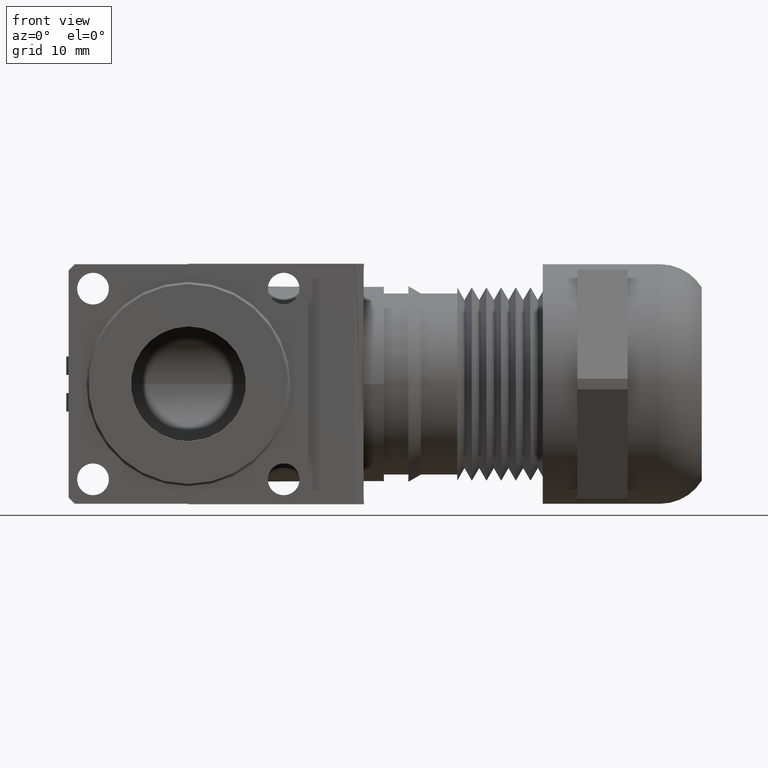
[diagram: clean part render]
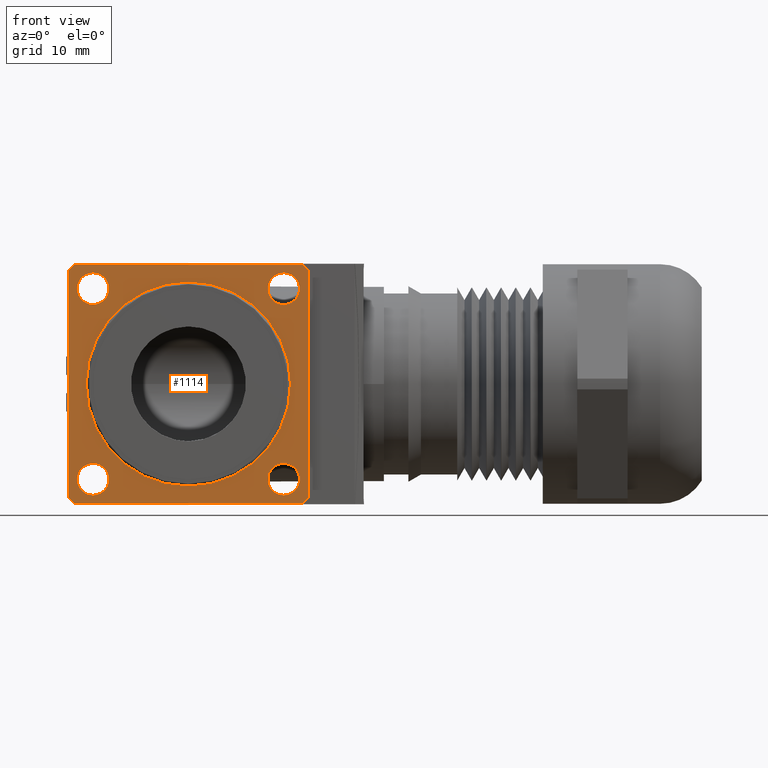
[diagram: same view with one face highlighted and labeled with its STEP entity id]
A machine part, front view. The second image highlights one B-rep face of the part: STEP entity #1114.
In plain terms, the highlighted planar face has unit normal (0, 1, 0).
Its self-contained STEP definition (entity closure, byte-faithful):
#894 = EDGE_CURVE ( 'NONE', #895, #896, #3409, .T. ) ;
#895 = VERTEX_POINT ( 'NONE', #3400 ) ;
#896 = VERTEX_POINT ( 'NONE', #3399 ) ;
#901 = VERTEX_POINT ( 'NONE', #3555 ) ;
#938 = EDGE_CURVE ( 'NONE', #983, #901, #3479, .T. ) ;
#954 = EDGE_CURVE ( 'NONE', #955, #956, #3453, .T. ) ;
#955 = VERTEX_POINT ( 'NONE', #3448 ) ;
#956 = VERTEX_POINT ( 'NONE', #3447 ) ;
#959 = EDGE_CURVE ( 'NONE', #965, #960, #3441, .T. ) ;
#960 = VERTEX_POINT ( 'NONE', #3436 ) ;
#965 = VERTEX_POINT ( 'NONE', #3429 ) ;
#983 = VERTEX_POINT ( 'NONE', #3363 ) ;
#996 = EDGE_CURVE ( 'NONE', #997, #998, #3646, .T. ) ;
#997 = VERTEX_POINT ( 'NONE', #3773 ) ;
#998 = VERTEX_POINT ( 'NONE', #3772 ) ;
#1022 = EDGE_LOOP ( 'NONE', ( #1023, #1072 ) ) ;
#1023 = ORIENTED_EDGE ( 'NONE', *, *, #959, .F. ) ;
#1042 = ORIENTED_EDGE ( 'NONE', *, *, #1043, .F. ) ;
#1043 = EDGE_CURVE ( 'NONE', #956, #955, #3735, .T. ) ;
#1044 = EDGE_LOOP ( 'NONE', ( #1045, #1046 ) ) ;
#1045 = ORIENTED_EDGE ( 'NONE', *, *, #996, .F. ) ;
#1046 = ORIENTED_EDGE ( 'NONE', *, *, #1175, .F. ) ;
#1052 = ORIENTED_EDGE ( 'NONE', *, *, #1053, .T. ) ;
#1053 = EDGE_CURVE ( 'NONE', #1174, #1146, #3723, .T. ) ;
#1054 = ORIENTED_EDGE ( 'NONE', *, *, #1055, .T. ) ;
#1055 = EDGE_CURVE ( 'NONE', #1158, #1056, #3719, .T. ) ;
#1056 = VERTEX_POINT ( 'NONE', #3715 ) ;
#1064 = EDGE_CURVE ( 'NONE', #1122, #1065, #3700, .T. ) ;
#1065 = VERTEX_POINT ( 'NONE', #3696 ) ;
#1066 = ORIENTED_EDGE ( 'NONE', *, *, #1067, .T. ) ;
#1067 = EDGE_CURVE ( 'NONE', #1065, #1068, #3695, .T. ) ;
#1068 = VERTEX_POINT ( 'NONE', #3691 ) ;
#1072 = ORIENTED_EDGE ( 'NONE', *, *, #1162, .F. ) ;
#1073 = EDGE_LOOP ( 'NONE', ( #1074, #1134 ) ) ;
#1074 = ORIENTED_EDGE ( 'NONE', *, *, #894, .F. ) ;
#1079 = ORIENTED_EDGE ( 'NONE', *, *, #1064, .T. ) ;
#1114 = ADVANCED_FACE ( 'NONE', ( #3890, #3889, #3888, #3887, #3886, #3885 ), #3818, .F. ) ;
#1120 = ORIENTED_EDGE ( 'NONE', *, *, #1121, .T. ) ;
#1121 = EDGE_CURVE ( 'NONE', #1146, #1122, #3811, .T. ) ;
#1122 = VERTEX_POINT ( 'NONE', #3807 ) ;
#1134 = ORIENTED_EDGE ( 'NONE', *, *, #1154, .F. ) ;
#1146 = VERTEX_POINT ( 'NONE', #4008 ) ;
#1147 = EDGE_CURVE ( 'NONE', #1068, #1163, #4007, .T. ) ;
#1148 = ORIENTED_EDGE ( 'NONE', *, *, #954, .F. ) ;
#1154 = EDGE_CURVE ( 'NONE', #896, #895, #3996, .T. ) ;
#1155 = EDGE_LOOP ( 'NONE', ( #1159, #1054, #1160, #1052, #1120, #1079, #1066, #1156 ) ) ;
#1156 = ORIENTED_EDGE ( 'NONE', *, *, #1147, .T. ) ;
#1157 = EDGE_LOOP ( 'NONE', ( #1148, #1042 ) ) ;
#1158 = VERTEX_POINT ( 'NONE', #3903 ) ;
#1159 = ORIENTED_EDGE ( 'NONE', *, *, #1161, .T. ) ;
#1160 = ORIENTED_EDGE ( 'NONE', *, *, #1173, .T. ) ;
#1161 = EDGE_CURVE ( 'NONE', #1163, #1158, #3902, .T. ) ;
#1162 = EDGE_CURVE ( 'NONE', #960, #965, #3898, .T. ) ;
#1163 = VERTEX_POINT ( 'NONE', #3893 ) ;
#1173 = EDGE_CURVE ( 'NONE', #1056, #1174, #3937, .T. ) ;
#1174 = VERTEX_POINT ( 'NONE', #3928 ) ;
#1175 = EDGE_CURVE ( 'NONE', #998, #997, #3927, .T. ) ;
#1176 = EDGE_LOOP ( 'NONE', ( #1177, #1179 ) ) ;
#1177 = ORIENTED_EDGE ( 'NONE', *, *, #1178, .F. ) ;
#1178 = EDGE_CURVE ( 'NONE', #901, #983, #3922, .T. ) ;
#1179 = ORIENTED_EDGE ( 'NONE', *, *, #938, .F. ) ;
#3363 = CARTESIAN_POINT ( 'NONE',  ( -0.7999999999999993800, -0.5250000000000001300, -0.4176880967160699300 ) ) ;
#3399 = CARTESIAN_POINT ( 'NONE',  ( -1.189999999999999500, -0.5250000000000001300, 0.3249999999999995100 ) ) ;
#3400 = CARTESIAN_POINT ( 'NONE',  ( -1.189999999999999500, -0.5250000000000001300, 0.4549999999999995200 ) ) ;
#3401 = DIRECTION ( 'NONE',  ( 0.0000000000000000000, 0.0000000000000000000, 1.000000000000000000 ) ) ;
#3402 = DIRECTION ( 'NONE',  ( 0.0000000000000000000, -1.000000000000000000, 0.0000000000000000000 ) ) ;
#3403 = CARTESIAN_POINT ( 'NONE',  ( -1.189999999999999500, -0.5250000000000001300, 0.3899999999999995100 ) ) ;
#3404 = AXIS2_PLACEMENT_3D ( 'NONE', #3403, #3402, #3401 ) ;
#3409 = CIRCLE ( 'NONE', #3404, 0.06499999999999998800 ) ;
#3429 = CARTESIAN_POINT ( 'NONE',  ( -1.189999999999999500, -0.5250000000000001300, -0.3249999999999999600 ) ) ;
#3436 = CARTESIAN_POINT ( 'NONE',  ( -1.189999999999999500, -0.5250000000000001300, -0.4549999999999999000 ) ) ;
#3437 = DIRECTION ( 'NONE',  ( 0.0000000000000000000, 0.0000000000000000000, -1.000000000000000000 ) ) ;
#3438 = DIRECTION ( 'NONE',  ( 0.0000000000000000000, -1.000000000000000000, 0.0000000000000000000 ) ) ;
#3439 = CARTESIAN_POINT ( 'NONE',  ( -1.189999999999999500, -0.5250000000000001300, -0.3899999999999999600 ) ) ;
#3440 = AXIS2_PLACEMENT_3D ( 'NONE', #3439, #3438, #3437 ) ;
#3441 = CIRCLE ( 'NONE', #3440, 0.06499999999999998800 ) ;
#3447 = CARTESIAN_POINT ( 'NONE',  ( -0.4099999999999999800, -0.5250000000000001300, 0.3249999999999996200 ) ) ;
#3448 = CARTESIAN_POINT ( 'NONE',  ( -0.4099999999999999800, -0.5250000000000001300, 0.4549999999999995700 ) ) ;
#3449 = DIRECTION ( 'NONE',  ( 0.0000000000000000000, 0.0000000000000000000, -1.000000000000000000 ) ) ;
#3450 = DIRECTION ( 'NONE',  ( 0.0000000000000000000, -1.000000000000000000, 0.0000000000000000000 ) ) ;
#3451 = CARTESIAN_POINT ( 'NONE',  ( -0.4099999999999999800, -0.5250000000000001300, 0.3899999999999995700 ) ) ;
#3452 = AXIS2_PLACEMENT_3D ( 'NONE', #3451, #3450, #3449 ) ;
#3453 = CIRCLE ( 'NONE', #3452, 0.06499999999999998800 ) ;
#3475 = DIRECTION ( 'NONE',  ( 0.0000000000000000000, 0.0000000000000000000, 1.000000000000000000 ) ) ;
#3476 = DIRECTION ( 'NONE',  ( 0.0000000000000000000, -1.000000000000000000, 0.0000000000000000000 ) ) ;
#3477 = CARTESIAN_POINT ( 'NONE',  ( -0.7999999999999993800, -0.5250000000000001300, 0.0000000000000000000 ) ) ;
#3478 = AXIS2_PLACEMENT_3D ( 'NONE', #3477, #3476, #3475 ) ;
#3479 = CIRCLE ( 'NONE', #3478, 0.4176880967160699300 ) ;
#3555 = CARTESIAN_POINT ( 'NONE',  ( -0.7999999999999993800, -0.5250000000000001300, 0.4176880967160699300 ) ) ;
#3640 = CARTESIAN_POINT ( 'NONE',  ( -0.4100000000000001400, -0.5250000000000001300, -0.3899999999999998500 ) ) ;
#3641 = AXIS2_PLACEMENT_3D ( 'NONE', #3640, #3775, #3774 ) ;
#3646 = CIRCLE ( 'NONE', #3641, 0.06499999999999998800 ) ;
#3691 = CARTESIAN_POINT ( 'NONE',  ( -1.289999999999998500, -0.5250000000000001300, -0.4650000000000008000 ) ) ;
#3692 = DIRECTION ( 'NONE',  ( 1.115039997413985000E-015, 0.0000000000000000000, -1.000000000000000000 ) ) ;
#3693 = VECTOR ( 'NONE', #3692, 39.37007874015748100 ) ;
#3694 = CARTESIAN_POINT ( 'NONE',  ( -1.289999999999999600, -0.5250000000000001300, 0.4899999999999989900 ) ) ;
#3695 = LINE ( 'NONE', #3694, #3693 ) ;
#3696 = CARTESIAN_POINT ( 'NONE',  ( -1.289999999999999600, -0.5250000000000001300, 0.4649999999999991400 ) ) ;
#3697 = DIRECTION ( 'NONE',  ( -0.7071067811865474600, 0.0000000000000000000, -0.7071067811865474600 ) ) ;
#3698 = VECTOR ( 'NONE', #3697, 39.37007874015748900 ) ;
#3699 = CARTESIAN_POINT ( 'NONE',  ( -1.289999999999999600, -0.5250000000000001300, 0.4649999999999991400 ) ) ;
#3700 = LINE ( 'NONE', #3699, #3698 ) ;
#3715 = CARTESIAN_POINT ( 'NONE',  ( -0.3099999999999987200, -0.5250000000000001300, -0.4649999999999999100 ) ) ;
#3716 = DIRECTION ( 'NONE',  ( 0.7071067811865484600, 0.0000000000000000000, 0.7071067811865465700 ) ) ;
#3717 = VECTOR ( 'NONE', #3716, 39.37007874015748100 ) ;
#3718 = CARTESIAN_POINT ( 'NONE',  ( -0.3099999999999987200, -0.5250000000000001300, -0.4649999999999999100 ) ) ;
#3719 = LINE ( 'NONE', #3718, #3717 ) ;
#3720 = DIRECTION ( 'NONE',  ( -0.7071067811865465700, 0.0000000000000000000, 0.7071067811865484600 ) ) ;
#3721 = VECTOR ( 'NONE', #3720, 39.37007874015748100 ) ;
#3722 = CARTESIAN_POINT ( 'NONE',  ( -0.3349999999999990200, -0.5250000000000001300, 0.4900000000000000500 ) ) ;
#3723 = LINE ( 'NONE', #3722, #3721 ) ;
#3731 = DIRECTION ( 'NONE',  ( 0.0000000000000000000, 0.0000000000000000000, -1.000000000000000000 ) ) ;
#3732 = DIRECTION ( 'NONE',  ( 0.0000000000000000000, -1.000000000000000000, 0.0000000000000000000 ) ) ;
#3733 = CARTESIAN_POINT ( 'NONE',  ( -0.4099999999999999800, -0.5250000000000001300, 0.3899999999999995700 ) ) ;
#3734 = AXIS2_PLACEMENT_3D ( 'NONE', #3733, #3732, #3731 ) ;
#3735 = CIRCLE ( 'NONE', #3734, 0.06499999999999998800 ) ;
#3772 = CARTESIAN_POINT ( 'NONE',  ( -0.4100000000000001400, -0.5250000000000001300, -0.4549999999999998500 ) ) ;
#3773 = CARTESIAN_POINT ( 'NONE',  ( -0.4100000000000001400, -0.5250000000000001300, -0.3249999999999999000 ) ) ;
#3774 = DIRECTION ( 'NONE',  ( 0.0000000000000000000, 0.0000000000000000000, 1.000000000000000000 ) ) ;
#3775 = DIRECTION ( 'NONE',  ( 0.0000000000000000000, -1.000000000000000000, 0.0000000000000000000 ) ) ;
#3807 = CARTESIAN_POINT ( 'NONE',  ( -1.264999999999999700, -0.5250000000000001300, 0.4899999999999989900 ) ) ;
#3808 = DIRECTION ( 'NONE',  ( -1.000000000000000000, 0.0000000000000000000, -1.045349997575610300E-015 ) ) ;
#3809 = VECTOR ( 'NONE', #3808, 39.37007874015748100 ) ;
#3810 = CARTESIAN_POINT ( 'NONE',  ( -0.3099999999999990000, -0.5250000000000001300, 0.4900000000000000500 ) ) ;
#3811 = LINE ( 'NONE', #3810, #3809 ) ;
#3814 = DIRECTION ( 'NONE',  ( 0.0000000000000000000, 0.0000000000000000000, 1.000000000000000000 ) ) ;
#3815 = DIRECTION ( 'NONE',  ( 0.0000000000000000000, 1.000000000000000000, 0.0000000000000000000 ) ) ;
#3816 = CARTESIAN_POINT ( 'NONE',  ( -0.3099999999999990000, -0.5250000000000001300, 0.4900000000000000500 ) ) ;
#3817 = AXIS2_PLACEMENT_3D ( 'NONE', #3816, #3815, #3814 ) ;
#3818 = PLANE ( 'NONE',  #3817 ) ;
#3885 = FACE_BOUND ( 'NONE', #1176, .T. ) ;
#3886 = FACE_BOUND ( 'NONE', #1044, .T. ) ;
#3887 = FACE_BOUND ( 'NONE', #1157, .T. ) ;
#3888 = FACE_OUTER_BOUND ( 'NONE', #1155, .T. ) ;
#3889 = FACE_BOUND ( 'NONE', #1073, .T. ) ;
#3890 = FACE_BOUND ( 'NONE', #1022, .T. ) ;
#3893 = CARTESIAN_POINT ( 'NONE',  ( -1.264999999999998100, -0.5250000000000001300, -0.4900000000000009900 ) ) ;
#3894 = DIRECTION ( 'NONE',  ( 0.0000000000000000000, 0.0000000000000000000, -1.000000000000000000 ) ) ;
#3895 = DIRECTION ( 'NONE',  ( 0.0000000000000000000, -1.000000000000000000, 0.0000000000000000000 ) ) ;
#3896 = CARTESIAN_POINT ( 'NONE',  ( -1.189999999999999500, -0.5250000000000001300, -0.3899999999999999600 ) ) ;
#3897 = AXIS2_PLACEMENT_3D ( 'NONE', #3896, #3895, #3894 ) ;
#3898 = CIRCLE ( 'NONE', #3897, 0.06499999999999998800 ) ;
#3899 = DIRECTION ( 'NONE',  ( 1.000000000000000000, 0.0000000000000000000, 1.045349997575611200E-015 ) ) ;
#3900 = VECTOR ( 'NONE', #3899, 39.37007874015748100 ) ;
#3901 = CARTESIAN_POINT ( 'NONE',  ( -0.3099999999999987200, -0.5250000000000001300, -0.4899999999999998800 ) ) ;
#3902 = LINE ( 'NONE', #3901, #3900 ) ;
#3903 = CARTESIAN_POINT ( 'NONE',  ( -0.3349999999999988000, -0.5250000000000001300, -0.4899999999999998800 ) ) ;
#3904 = DIRECTION ( 'NONE',  ( 0.0000000000000000000, 0.0000000000000000000, 1.000000000000000000 ) ) ;
#3905 = DIRECTION ( 'NONE',  ( 0.0000000000000000000, -1.000000000000000000, 0.0000000000000000000 ) ) ;
#3906 = CARTESIAN_POINT ( 'NONE',  ( -1.189999999999999500, -0.5250000000000001300, 0.3899999999999995100 ) ) ;
#3907 = AXIS2_PLACEMENT_3D ( 'NONE', #3906, #3905, #3904 ) ;
#3918 = DIRECTION ( 'NONE',  ( 0.0000000000000000000, 0.0000000000000000000, 1.000000000000000000 ) ) ;
#3919 = DIRECTION ( 'NONE',  ( 0.0000000000000000000, -1.000000000000000000, 0.0000000000000000000 ) ) ;
#3920 = CARTESIAN_POINT ( 'NONE',  ( -0.7999999999999993800, -0.5250000000000001300, 0.0000000000000000000 ) ) ;
#3921 = AXIS2_PLACEMENT_3D ( 'NONE', #3920, #3919, #3918 ) ;
#3922 = CIRCLE ( 'NONE', #3921, 0.4176880967160699300 ) ;
#3923 = DIRECTION ( 'NONE',  ( 0.0000000000000000000, 0.0000000000000000000, 1.000000000000000000 ) ) ;
#3924 = DIRECTION ( 'NONE',  ( 0.0000000000000000000, -1.000000000000000000, 0.0000000000000000000 ) ) ;
#3925 = CARTESIAN_POINT ( 'NONE',  ( -0.4100000000000001400, -0.5250000000000001300, -0.3899999999999998500 ) ) ;
#3926 = AXIS2_PLACEMENT_3D ( 'NONE', #3925, #3924, #3923 ) ;
#3927 = CIRCLE ( 'NONE', #3926, 0.06499999999999998800 ) ;
#3928 = CARTESIAN_POINT ( 'NONE',  ( -0.3099999999999990000, -0.5250000000000001300, 0.4649999999999999700 ) ) ;
#3929 = DIRECTION ( 'NONE',  ( -2.787599993534962600E-016, 0.0000000000000000000, 1.000000000000000000 ) ) ;
#3930 = VECTOR ( 'NONE', #3929, 39.37007874015748100 ) ;
#3931 = CARTESIAN_POINT ( 'NONE',  ( -0.3099999999999990000, -0.5250000000000001300, 0.4900000000000000500 ) ) ;
#3937 = LINE ( 'NONE', #3931, #3930 ) ;
#3996 = CIRCLE ( 'NONE', #3907, 0.06499999999999998800 ) ;
#4004 = DIRECTION ( 'NONE',  ( 0.7071067811865513500, 0.0000000000000000000, -0.7071067811865435800 ) ) ;
#4005 = VECTOR ( 'NONE', #4004, 39.37007874015748900 ) ;
#4006 = CARTESIAN_POINT ( 'NONE',  ( -1.264999999999998300, -0.5250000000000001300, -0.4900000000000009300 ) ) ;
#4007 = LINE ( 'NONE', #4006, #4005 ) ;
#4008 = CARTESIAN_POINT ( 'NONE',  ( -0.3349999999999990200, -0.5250000000000001300, 0.4900000000000000500 ) ) ;